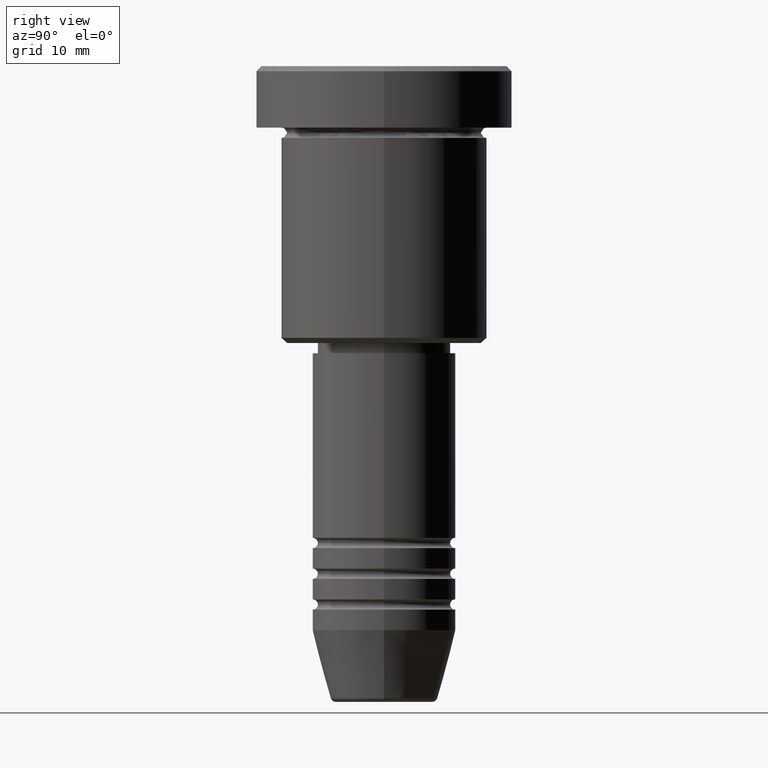
[diagram: clean part render]
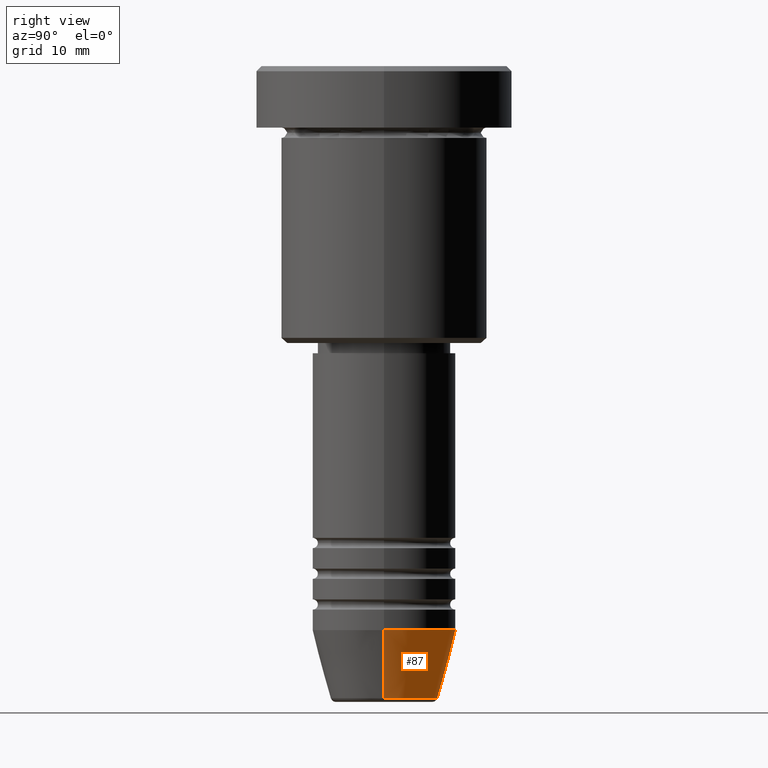
[diagram: same view with one face highlighted and labeled with its STEP entity id]
A machine part, right view. The second image highlights one B-rep face of the part: STEP entity #87.
In plain terms, the highlighted conical surface has half-angle 15 deg.
Its self-contained STEP definition (entity closure, byte-faithful):
#1 = EDGE_CURVE ( 'NONE', #319, #133, #586, .T. ) ;
#21 = EDGE_CURVE ( 'NONE', #185, #1057, #41, .T. ) ;
#28 = CARTESIAN_POINT ( 'NONE',  ( 5.223655072137191269, 0.000000000000000000, -61.62940952255126348 ) ) ;
#41 = LINE ( 'NONE', #1034, #239 ) ;
#66 = DIRECTION ( 'NONE',  ( -0.000000000000000000, -0.000000000000000000, 1.000000000000000000 ) ) ;
#69 = ORIENTED_EDGE ( 'NONE', *, *, #288, .F. ) ;
#87 = ADVANCED_FACE ( 'NONE', ( #810 ), #392, .T. ) ;
#133 = VERTEX_POINT ( 'NONE', #840 ) ;
#137 = DIRECTION ( 'NONE',  ( -0.2588190451025213501, 3.169619151431772337E-17, 0.9659258262890680902 ) ) ;
#153 = EDGE_LOOP ( 'NONE', ( #978, #516, #69, #531 ) ) ;
#178 = VECTOR ( 'NONE', #137, 1000.000000000000000 ) ;
#185 = VERTEX_POINT ( 'NONE', #28 ) ;
#217 = DIRECTION ( 'NONE',  ( 1.000000000000000000, 0.000000000000000000, 0.000000000000000000 ) ) ;
#239 = VECTOR ( 'NONE', #857, 1000.000000000000000 ) ;
#240 = AXIS2_PLACEMENT_3D ( 'NONE', #1094, #476, #659 ) ;
#288 = EDGE_CURVE ( 'NONE', #1057, #133, #899, .T. ) ;
#301 = CARTESIAN_POINT ( 'NONE',  ( 0.000000000000000000, 0.000000000000000000, -55.00000000000000000 ) ) ;
#319 = VERTEX_POINT ( 'NONE', #364 ) ;
#364 = CARTESIAN_POINT ( 'NONE',  ( -5.223655072137191269, 7.484830028987059188E-16, -61.62940952255126348 ) ) ;
#392 = CONICAL_SURFACE ( 'NONE', #471, 7.000000000000000000, 0.2617993877991500740 ) ;
#471 = AXIS2_PLACEMENT_3D ( 'NONE', #1083, #66, #815 ) ;
#476 = DIRECTION ( 'NONE',  ( -0.000000000000000000, -0.000000000000000000, 1.000000000000000000 ) ) ;
#495 = EDGE_CURVE ( 'NONE', #185, #319, #1149, .T. ) ;
#516 = ORIENTED_EDGE ( 'NONE', *, *, #1, .T. ) ;
#531 = ORIENTED_EDGE ( 'NONE', *, *, #21, .F. ) ;
#564 = CARTESIAN_POINT ( 'NONE',  ( 7.000000000000000000, 0.000000000000000000, -55.00000000000000000 ) ) ;
#586 = LINE ( 'NONE', #853, #178 ) ;
#617 = AXIS2_PLACEMENT_3D ( 'NONE', #301, #1054, #217 ) ;
#659 = DIRECTION ( 'NONE',  ( 1.000000000000000000, 0.000000000000000000, 0.000000000000000000 ) ) ;
#810 = FACE_OUTER_BOUND ( 'NONE', #153, .T. ) ;
#815 = DIRECTION ( 'NONE',  ( 1.000000000000000000, 0.000000000000000000, 0.000000000000000000 ) ) ;
#840 = CARTESIAN_POINT ( 'NONE',  ( -7.000000000000000000, 8.572527594031473190E-16, -55.00000000000000000 ) ) ;
#853 = CARTESIAN_POINT ( 'NONE',  ( -7.000000000000000000, 8.572527594031473190E-16, -55.00000000000000000 ) ) ;
#857 = DIRECTION ( 'NONE',  ( 0.2588190451025213501, 0.000000000000000000, 0.9659258262890680902 ) ) ;
#899 = CIRCLE ( 'NONE', #617, 7.000000000000000000 ) ;
#978 = ORIENTED_EDGE ( 'NONE', *, *, #495, .T. ) ;
#1034 = CARTESIAN_POINT ( 'NONE',  ( 7.000000000000000000, 0.000000000000000000, -55.00000000000000000 ) ) ;
#1054 = DIRECTION ( 'NONE',  ( -0.000000000000000000, -0.000000000000000000, 1.000000000000000000 ) ) ;
#1057 = VERTEX_POINT ( 'NONE', #564 ) ;
#1083 = CARTESIAN_POINT ( 'NONE',  ( 0.000000000000000000, 0.000000000000000000, -55.00000000000000000 ) ) ;
#1094 = CARTESIAN_POINT ( 'NONE',  ( 0.000000000000000000, 0.000000000000000000, -61.62940952255126348 ) ) ;
#1149 = CIRCLE ( 'NONE', #240, 5.223655072137191269 ) ;